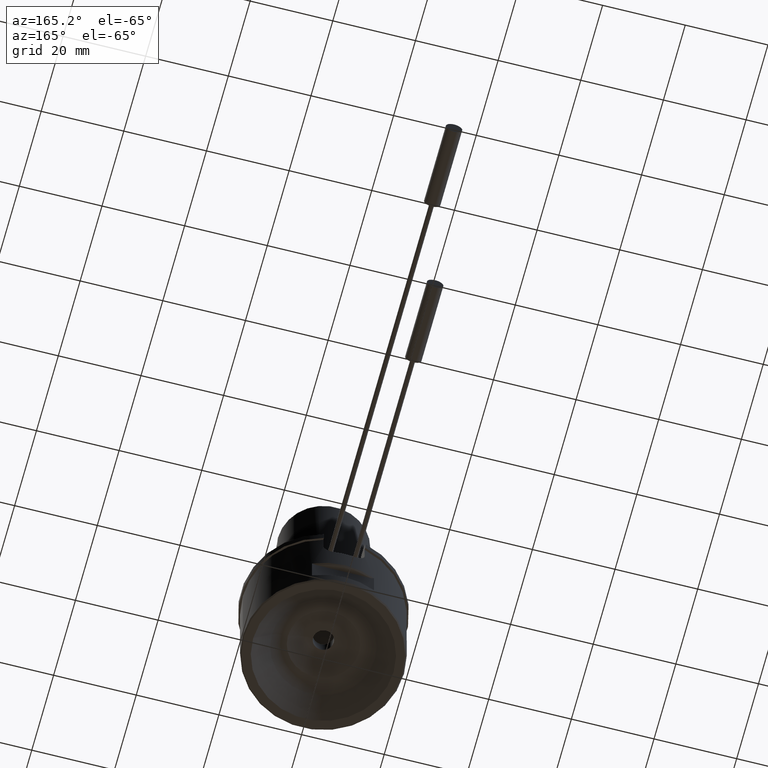
[diagram: clean part render]
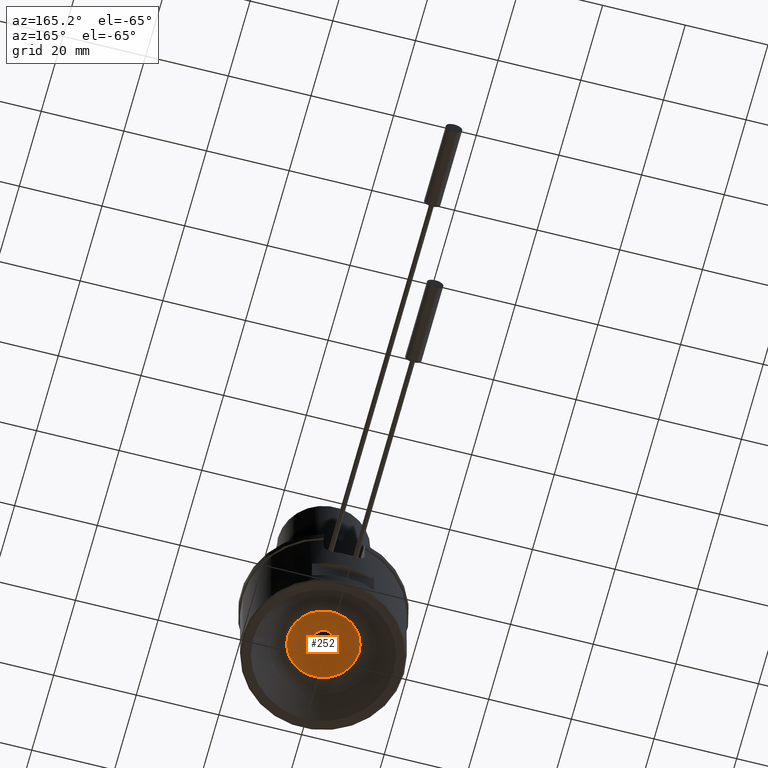
[diagram: same view with one face highlighted and labeled with its STEP entity id]
A machine part, auxiliary view. The second image highlights one B-rep face of the part: STEP entity #252.
In plain terms, the highlighted spherical surface has radius 16 mm.
Its self-contained STEP definition (entity closure, byte-faithful):
#34=SPHERICAL_SURFACE('',#1192,16.);
#252=ADVANCED_FACE('',(#373,#374),#34,.F.);
#373=FACE_BOUND('',#455,.T.);
#374=FACE_BOUND('',#456,.T.);
#455=EDGE_LOOP('',(#634));
#456=EDGE_LOOP('',(#635));
#634=ORIENTED_EDGE('',*,*,#996,.T.);
#635=ORIENTED_EDGE('',*,*,#995,.F.);
#871=VERTEX_POINT('',#2062);
#872=VERTEX_POINT('',#2065);
#995=EDGE_CURVE('',#871,#871,#1095,.T.);
#996=EDGE_CURVE('',#872,#872,#1096,.T.);
#1095=CIRCLE('',#1189,2.5);
#1096=CIRCLE('',#1191,8.58778201865889);
#1189=AXIS2_PLACEMENT_3D('',#2061,#1425,#1426);
#1191=AXIS2_PLACEMENT_3D('',#2064,#1429,#1430);
#1192=AXIS2_PLACEMENT_3D('',#2066,#1431,#1432);
#1425=DIRECTION('',(0.,0.,-1.));
#1426=DIRECTION('',(1.,0.,0.));
#1429=DIRECTION('',(0.,0.,-1.));
#1430=DIRECTION('',(1.,0.,0.));
#1431=DIRECTION('',(0.,-6.12323399573677E-17,1.));
#1432=DIRECTION('',(0.,-1.,0.));
#2061=CARTESIAN_POINT('',(0.,0.,8.30348062927911));
#2062=CARTESIAN_POINT('',(2.5,0.,8.30348062927911));
#2064=CARTESIAN_POINT('',(0.,0.,5.99999999999997));
#2065=CARTESIAN_POINT('',(8.58778201865889,0.,5.99999999999997));
#2066=CARTESIAN_POINT('',(0.,0.,-7.5));